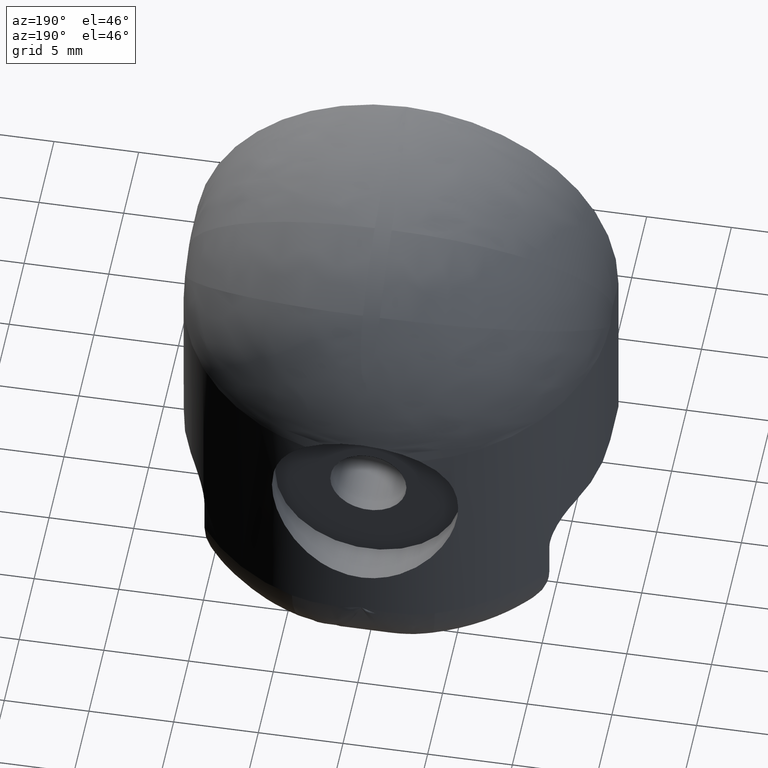
[diagram: clean part render]
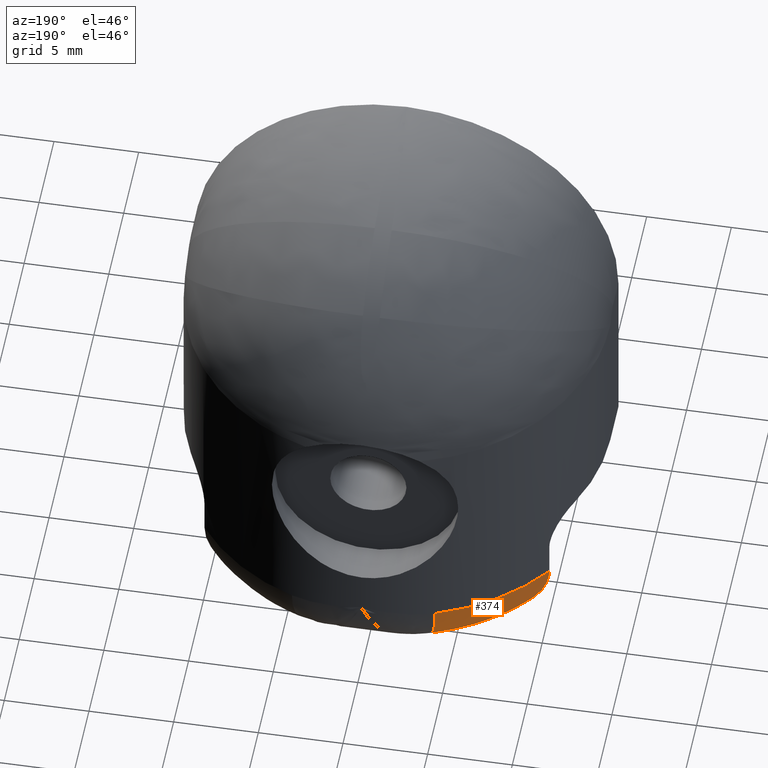
[diagram: same view with one face highlighted and labeled with its STEP entity id]
A machine part, auxiliary view. The second image highlights one B-rep face of the part: STEP entity #374.
In plain terms, the highlighted toroidal blend (fillet) surface has major radius 8.5 mm and minor (blend) radius 4 mm.
Its self-contained STEP definition (entity closure, byte-faithful):
#69=TOROIDAL_SURFACE('',#420,8.5,4.);
#73=FACE_OUTER_BOUND('',#97,.T.);
#97=EDGE_LOOP('',(#262,#263,#264,#265));
#125=B_SPLINE_CURVE_WITH_KNOTS('',3,(#697,#698,#699,#700,#701,#702,#703,
#704,#705,#706,#707,#708,#709,#710,#711,#712,#713,#714),.UNSPECIFIED.,.F.,
 .F.,(4,2,2,2,2,2,2,2,4),(0.416611233563317,0.554332463576889,0.692053693590461,
0.781853385880433,0.871653078170405,0.945686185742165,1.01971929331392,
1.08652005054677,1.15332080777961),.UNSPECIFIED.);
#139=CIRCLE('',#416,4.);
#142=CIRCLE('',#421,12.5);
#143=CIRCLE('',#422,8.5);
#163=VERTEX_POINT('',#652);
#164=VERTEX_POINT('',#653);
#167=VERTEX_POINT('',#695);
#168=VERTEX_POINT('',#696);
#198=EDGE_CURVE('',#163,#164,#139,.T.);
#204=EDGE_CURVE('',#167,#168,#125,.T.);
#205=EDGE_CURVE('',#168,#164,#142,.T.);
#206=EDGE_CURVE('',#163,#167,#143,.T.);
#262=ORIENTED_EDGE('',*,*,#204,.T.);
#263=ORIENTED_EDGE('',*,*,#205,.T.);
#264=ORIENTED_EDGE('',*,*,#198,.F.);
#265=ORIENTED_EDGE('',*,*,#206,.T.);
#374=ADVANCED_FACE('',(#73),#69,.T.);
#416=AXIS2_PLACEMENT_3D('',#654,#458,#459);
#420=AXIS2_PLACEMENT_3D('',#694,#466,#467);
#421=AXIS2_PLACEMENT_3D('',#715,#468,#469);
#422=AXIS2_PLACEMENT_3D('',#716,#470,#471);
#458=DIRECTION('center_axis',(0.94117647112735,0.337915448294789,5.33730049197107E-9));
#459=DIRECTION('ref_axis',(2.67788763386179E-9,8.33621449647382E-9,-1.));
#466=DIRECTION('center_axis',(0.,0.,1.));
#467=DIRECTION('ref_axis',(0.337915448294789,-0.94117647112735,0.));
#468=DIRECTION('center_axis',(0.,0.,-1.));
#469=DIRECTION('ref_axis',(0.337915448294789,-0.94117647112735,0.));
#470=DIRECTION('center_axis',(0.,0.,1.));
#471=DIRECTION('ref_axis',(0.337915448294789,-0.94117647112735,0.));
#652=CARTESIAN_POINT('',(-2.87228129979416,9.37500003792733,-15.5));
#653=CARTESIAN_POINT('',(-4.22394310368487,13.1397058890919,-11.5));
#654=CARTESIAN_POINT('Origin',(-2.87228131050571,9.37500000458247,-11.5));
#694=CARTESIAN_POINT('Origin',(-2.64141838645722E-15,1.375,-11.5));
#695=CARTESIAN_POINT('',(-4.43705983732472,8.62499999999999,-15.5));
#696=CARTESIAN_POINT('',(-10.1827059272082,8.62499999999999,-11.5));
#697=CARTESIAN_POINT('Ctrl Pts',(-4.43705983732472,8.62499999999999,-15.5));
#698=CARTESIAN_POINT('Ctrl Pts',(-4.89613060403663,8.62499999999999,-15.5));
#699=CARTESIAN_POINT('Ctrl Pts',(-5.40046833151129,8.625,-15.4773990838963));
#700=CARTESIAN_POINT('Ctrl Pts',(-6.39394744738562,8.625,-15.341813671203));
#701=CARTESIAN_POINT('Ctrl Pts',(-6.88285739764412,8.62499999999999,-15.2271387187293));
#702=CARTESIAN_POINT('Ctrl Pts',(-7.59695116216086,8.62499999999999,-14.9717070866739));
#703=CARTESIAN_POINT('Ctrl Pts',(-7.89753172577502,8.62499999999999,-14.8387196029008));
#704=CARTESIAN_POINT('Ctrl Pts',(-8.46406921760101,8.62499999999999,-14.514221215379));
#705=CARTESIAN_POINT('Ctrl Pts',(-8.72977006641153,8.62499999999999,-14.3222634303284));
#706=CARTESIAN_POINT('Ctrl Pts',(-9.13671027122971,8.62499999999999,-13.9580724458808));
#707=CARTESIAN_POINT('Ctrl Pts',(-9.32227038395085,8.62499999999999,-13.7609160186014));
#708=CARTESIAN_POINT('Ctrl Pts',(-9.64459845307323,8.62499999999999,-13.3306784334549));
#709=CARTESIAN_POINT('Ctrl Pts',(-9.7811626135416,8.62499999999999,-13.0974446321564));
#710=CARTESIAN_POINT('Ctrl Pts',(-9.97491461896713,8.62499999999999,-12.6698467952527));
#711=CARTESIAN_POINT('Ctrl Pts',(-10.0543831398208,8.625,-12.4390120363787));
#712=CARTESIAN_POINT('Ctrl Pts',(-10.1583171616406,8.625,-11.9654316528544));
#713=CARTESIAN_POINT('Ctrl Pts',(-10.1827059272082,8.62499999999999,-11.7226691907761));
#714=CARTESIAN_POINT('Ctrl Pts',(-10.1827059272082,8.62499999999999,-11.5));
#715=CARTESIAN_POINT('Origin',(-2.64141838645722E-15,1.375,-11.5));
#716=CARTESIAN_POINT('Origin',(-2.64141838645722E-15,1.375,-15.5));